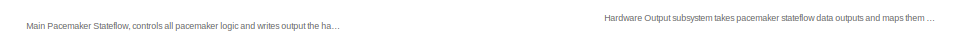
[diagram: root canvas - part 1/6, top right region]
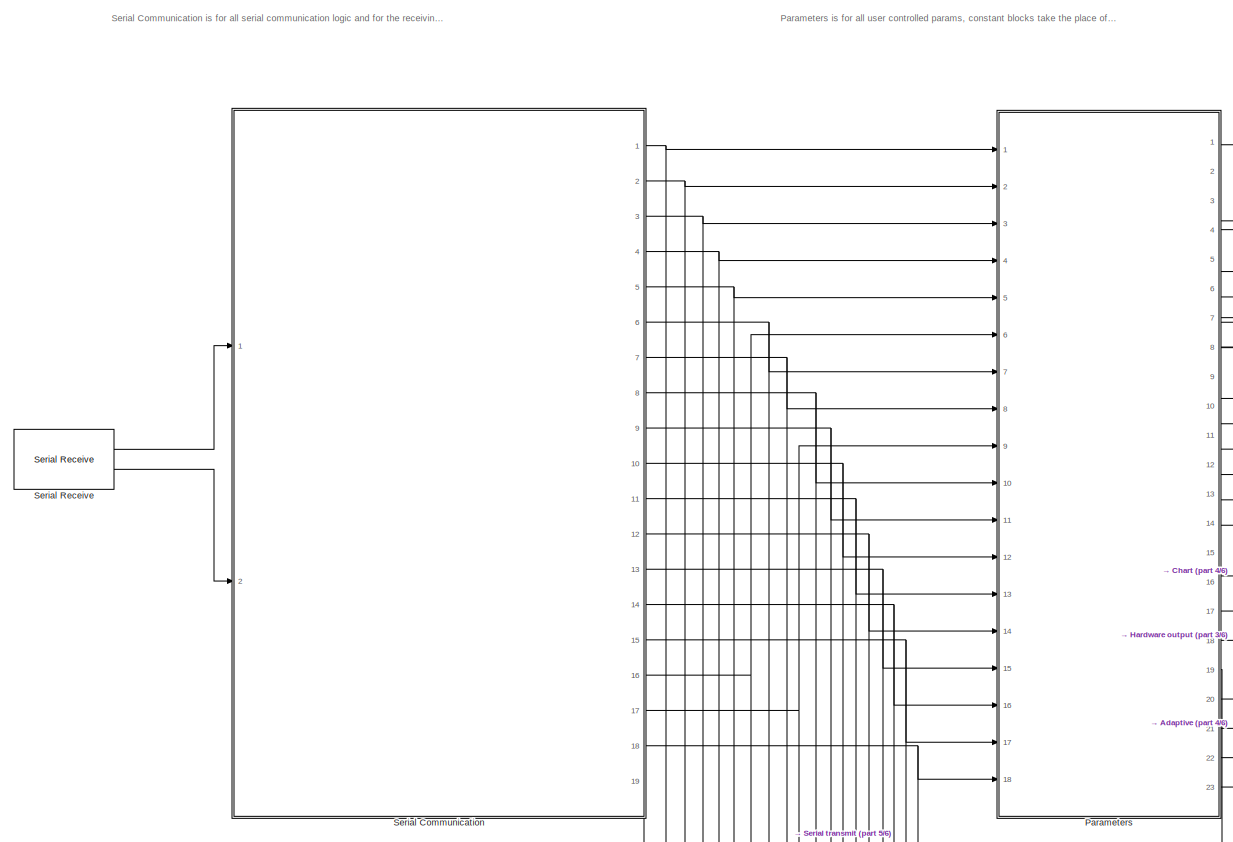
[diagram: root canvas - part 2/6, top left region]
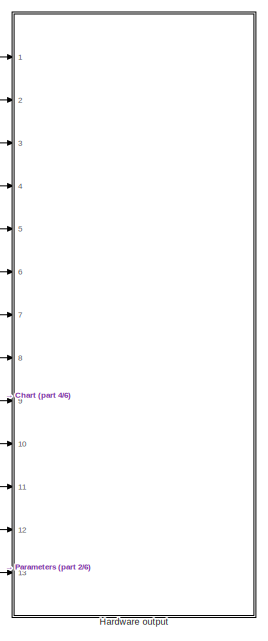
[diagram: root canvas - part 3/6, top right region]
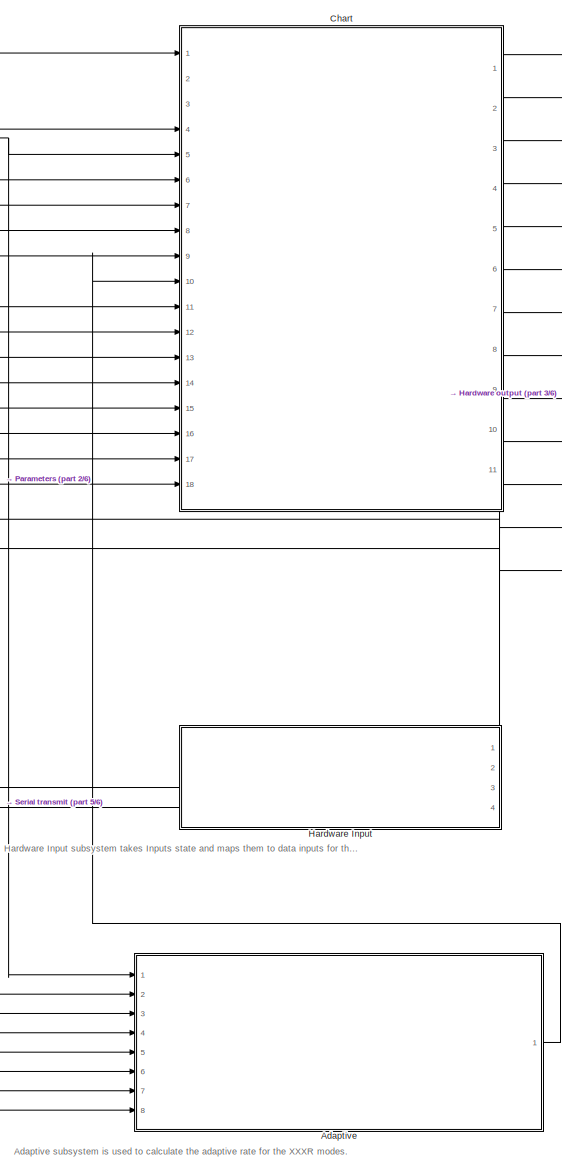
[diagram: root canvas - part 4/6, right side, full height]
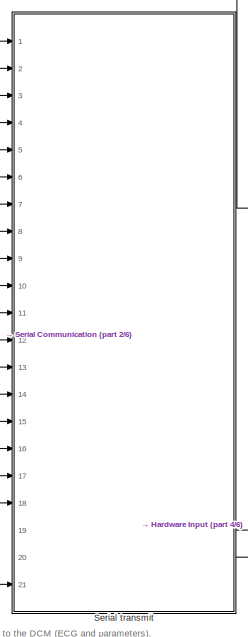
[diagram: root canvas - part 5/6, bottom center region]
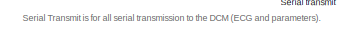
[diagram: root canvas - part 6/6, bottom center region]
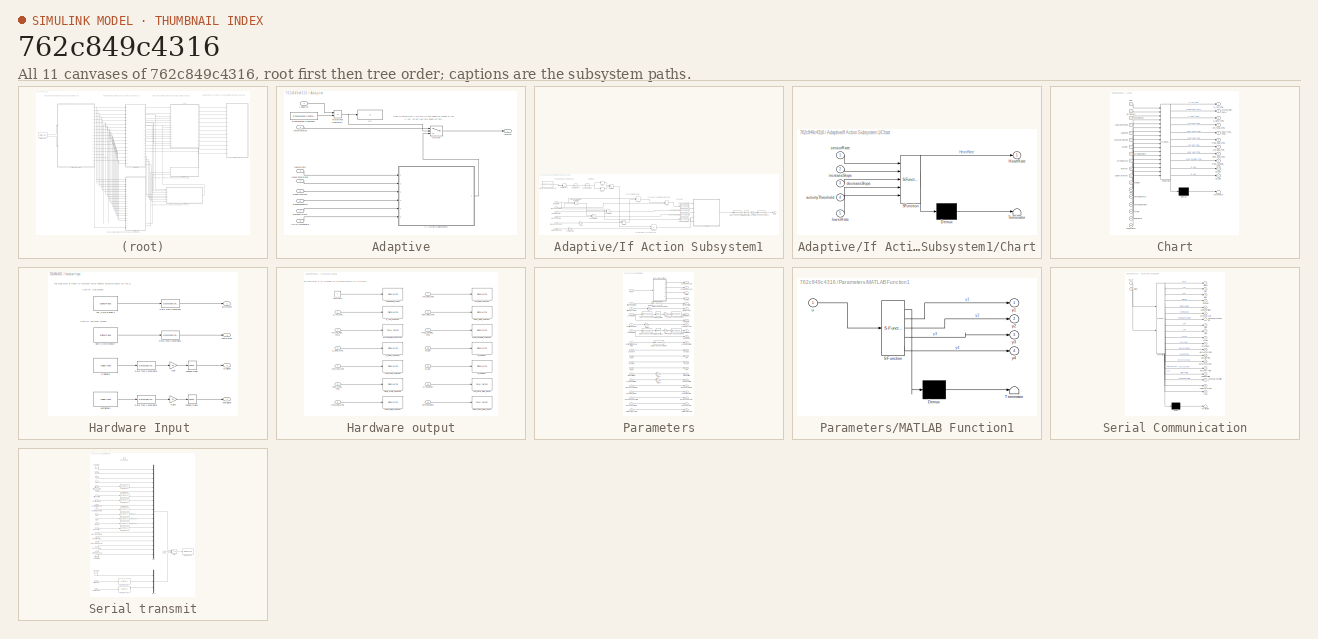
[diagram: thumbnail index - all 11 canvases of the model, root first then tree order]
MODEL slx_762c849c4316
KIND model
CONFIG AbsTol = auto
CONFIG EnableMultiTasking = on
CONFIG FixedStep = 1e-3
CONFIG MaxStep = auto
CONFIG MinStep = auto
CONFIG RelTol = 1e-3
CONFIG SampleTimeConstraint = Unconstrained
CONFIG Solver = FixedStepAuto
CONFIG SolverName = FixedStepAuto
CONFIG StartTime = 0.0
CONFIG StopTime = 10.0
BLOCK [SubSystem] Adaptive
  Ports = [8, 1]
  RequestExecContextInheritance = off
BLOCK [Inport] Adaptive/ActivityThreshold
  Port = 8
BLOCK [Inport] Adaptive/Adaptive
BLOCK [Reference] Adaptive/Enumerated Constant1  REF=simulink/Sources/Enumerated
Constant
  Ports = [0, 1]
  SourceBlock = simulink/Sources/Enumerated\nConstant
  SourceProductBaseCode = SL
  SourceType = Enumerated Constant
BLOCK [SubSystem] Adaptive/If Action Subsystem1
  Ports = [6, 1]
  RequestExecContextInheritance = off
  TreatAsAtomicUnit = on
BLOCK [Inport] Adaptive/If Action Subsystem1/ActivityThreshold
  Port = 6
BLOCK [DataTypeConversion] Adaptive/If Action Subsystem1/Cast To Double
  OutDataTypeStr = double
  RndMeth = Floor
  SaturateOnIntegerOverflow = off
BLOCK [DataTypeConversion] Adaptive/If Action Subsystem1/Cast To Double1
  OutDataTypeStr = double
  RndMeth = Floor
  SaturateOnIntegerOverflow = off
BLOCK [DataTypeConversion] Adaptive/If Action Subsystem1/Cast To Double2
  OutDataTypeStr = double
  RndMeth = Floor
  SaturateOnIntegerOverflow = off
BLOCK [DataTypeConversion] Adaptive/If Action Subsystem1/Cast To Double3
  OutDataTypeStr = double
  RndMeth = Floor
  SaturateOnIntegerOverflow = off
BLOCK [SubSystem] Adaptive/If Action Subsystem1/Chart
  ErrorFcn = Stateflow.Translate.translate
  PermitHierarchicalResolution = ExplicitOnly
  PortSchema = {"entries":[{"content":{"sides":[{"content":{"connectorIds":["In1","In2","In3","In5","In4"]},"type":"ConnectorPlacement.EquallySpacedRectSide","uuid":"280d3624-73d1-46b8-bef9-6b152ff520d0"},{"content":{"connectorIds":["Out1"],"side":"RIGHT"},"type":"ConnectorPlacement.EquallySpacedRectSide","uuid":"ca231bc9-092d-4f04-92da-0e5e1126d83a"},{"content":{"connectorIds":[],"side":"TOP"},"type":"Connector...<+266ch>
  Ports = [5, 1]
  RequestExecContextInheritance = off
  SFBlockType = Chart
  TreatAsAtomicUnit = on
BLOCK [Demux] Adaptive/If Action Subsystem1/Chart/ Demux 
  Outputs = 1
  Ports = [1, 1]
BLOCK [S-Function] Adaptive/If Action Subsystem1/Chart/ SFunction 
  EnableBusSupport = on
  FunctionName = sf_sfun
  PortCounts = [5 2]
  Ports = [5, 2]
  SFcnIsStateOwnerBlock = off
  SFunctionDeploymentMode = off
  Tag = Stateflow S-Function 4
BLOCK [Terminator] Adaptive/If Action Subsystem1/Chart/ Terminator 
BLOCK [Outport] Adaptive/If Action Subsystem1/Chart/HeartRate
BLOCK [Inport] Adaptive/If Action Subsystem1/Chart/activityThreshold
  Port = 4
BLOCK [Inport] Adaptive/If Action Subsystem1/Chart/decreaseSlope
  Port = 3
BLOCK [Inport] Adaptive/If Action Subsystem1/Chart/increaseSlope
  Port = 2
BLOCK [Inport] Adaptive/If Action Subsystem1/Chart/lowerRate
  Port = 5
BLOCK [Inport] Adaptive/If Action Subsystem1/Chart/sensorRate
BLOCK [DataTypeConversion] Adaptive/If Action Subsystem1/Data Type Conversion2
  OutDataTypeStr = double
  RndMeth = Floor
  SaturateOnIntegerOverflow = off
BLOCK [DataTypeConversion] Adaptive/If Action Subsystem1/Data Type Conversion3
  OutDataTypeStr = uint16
  RndMeth = Floor
  SaturateOnIntegerOverflow = off
BLOCK [Product] Adaptive/If Action Subsystem1/Divide
  Inputs = **
  Ports = [2, 1]
BLOCK [DotProduct] Adaptive/If Action Subsystem1/Dot Product
  OutDataTypeStr = Inherit: Inherit via internal rule
  RndMeth = Nearest
BLOCK [Reference] Adaptive/If Action Subsystem1/FXOS8700 6-Axes Sensor  REF=frdmk64flib/FXOS8700 6-Axes Sensor
  Ports = [0, 1]
  SourceBlock = frdmk64flib/FXOS8700 6-Axes Sensor
  SourceProductBaseCode = EC_FRDM_K64F
  SourceType = freedomk64f.fxos8700
BLOCK [Gain] Adaptive/If Action Subsystem1/Gain
  Gain = 3
BLOCK [Gain] Adaptive/If Action Subsystem1/Gain1
  Gain = 60000
  OutDataTypeStr = double
BLOCK [Math] Adaptive/If Action Subsystem1/Math Function1
  Operator = reciprocal
  Ports = [1, 1]
BLOCK [MinMax] Adaptive/If Action Subsystem1/Max
  Function = max
  Ports = [1, 1]
BLOCK [MinMax] Adaptive/If Action Subsystem1/Max1
  Ports = [1, 1]
BLOCK [Inport] Adaptive/If Action Subsystem1/MaxSensorRate
  Port = 2
BLOCK [Sum] Adaptive/If Action Subsystem1/MaxSensorRate - lowerRate
  IconShape = rectangular
  Inputs = -+
  Ports = [2, 1]
BLOCK [MinMax] Adaptive/If Action Subsystem1/Min
  Inputs = 2
  Ports = [2, 1]
BLOCK [Outport] Adaptive/If Action Subsystem1/Out1
  InitialOutput = [0]
  OutputWhenDisabled = reset
BLOCK [Inport] Adaptive/If Action Subsystem1/ReactionTime
  Port = 3
BLOCK [Inport] Adaptive/If Action Subsystem1/RecoveryTime
  Port = 5
BLOCK [Inport] Adaptive/If Action Subsystem1/ResponseFactor
  Port = 4
BLOCK [Sqrt] Adaptive/If Action Subsystem1/Square Root
BLOCK [Sum] Adaptive/If Action Subsystem1/Subtract
  IconShape = rectangular
  Inputs = +-
  Ports = [2, 1]
BLOCK [Sum] Adaptive/If Action Subsystem1/Sum
  IconShape = rectangular
  Inputs = |++
  Ports = [2, 1]
BLOCK [Sum] Adaptive/If Action Subsystem1/Sum1
  IconShape = rectangular
  Inputs = |+-
  Ports = [2, 1]
BLOCK [Reference] Adaptive/If Action Subsystem1/Tapped Delay  REF=simulink/Discrete/Tapped Delay
  Ports = [1, 1]
  SourceBlock = simulink/Discrete/Tapped Delay
  SourceProductBaseCode = SL
  SourceType = Tapped Delay Line
BLOCK [Product] Adaptive/If Action Subsystem1/accelSlope
  Inputs = */
  Ports = [2, 1]
BLOCK [Product] Adaptive/If Action Subsystem1/decelSlope
  Inputs = */
  Ports = [2, 1]
BLOCK [Inport] Adaptive/If Action Subsystem1/lowerRate
BLOCK [Gain] Adaptive/If Action Subsystem1/scaleDown
  Gain = 0.5
BLOCK [If] Adaptive/If1
  IfExpression = u1 ~= 1
  Ports = [1, 1]
  ShowElse = off
BLOCK [Outport] Adaptive/Interval
BLOCK [Inport] Adaptive/LowerRate
  Port = 2
BLOCK [Inport] Adaptive/MaxSensorRate
  Port = 4
BLOCK [Inport] Adaptive/ReactionTime
  Port = 5
BLOCK [Inport] Adaptive/RecoveryTime
  Port = 7
BLOCK [RelationalOperator] Adaptive/Relational Operator1
  InputSameDT = off
  Operator = ==
  OutDataTypeStr = boolean
  Ports = [2, 1]
  RndMeth = Simplest
BLOCK [Inport] Adaptive/ResponseFactor
  Port = 6
BLOCK [Switch] Adaptive/Switch
  Criteria = u2 > Threshold
  InputSameDT = off
  SaturateOnIntegerOverflow = off
BLOCK [Inport] Adaptive/lowerInterval
  Port = 3
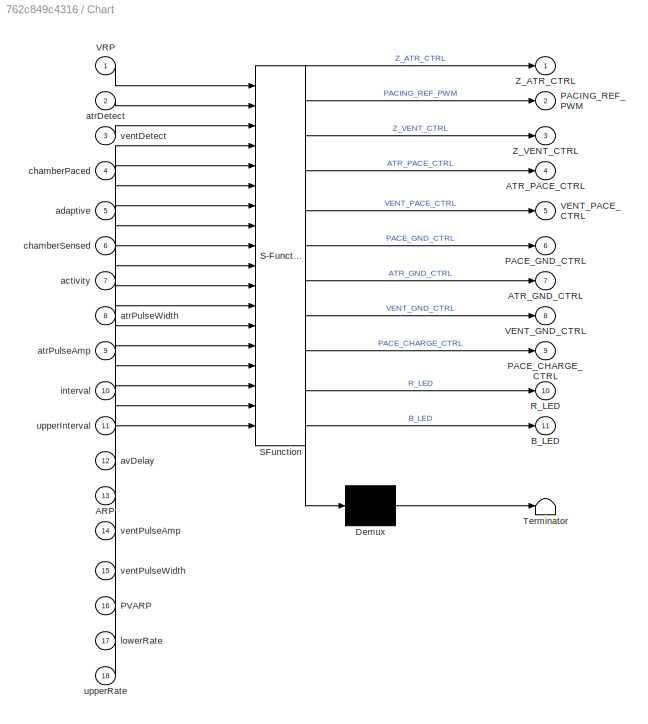
BLOCK [SubSystem] Chart
  ErrorFcn = Stateflow.Translate.translate
  PermitHierarchicalResolution = ExplicitOnly
  PortSchema = {"entries":[{"content":{"sides":[{"content":{"connectorIds":["In4","In6","In7","In5","In8","In9","In17","In10","In11","In18","In12","In13","In16","In1","In14","In15"]},"type":"ConnectorPlacement.EquallySpacedRectSide","uuid":"0f4bb13e-4f4f-48e2-b63c-32132ec29449"},{"content":{"connectorIds":["Out1","Out2","Out3","Out4","Out5","Out6","Out7","Out8","Out9","Out10","Out11"],"side":"RIGHT"},"type":"Con...<+568ch>
  Ports = [18, 11]
  RequestExecContextInheritance = off
  SFBlockType = Chart
  TreatAsAtomicUnit = on
BLOCK [Demux] Chart/ Demux 
  Outputs = 1
  Ports = [1, 1]
BLOCK [S-Function] Chart/ SFunction 
  EnableBusSupport = on
  FunctionName = sf_sfun
  PortCounts = [18 12]
  Ports = [18, 12]
  SFcnIsStateOwnerBlock = off
  SFunctionDeploymentMode = off
  Tag = Stateflow S-Function 2
BLOCK [Terminator] Chart/ Terminator 
BLOCK [Inport] Chart/ARP
  Port = 13
BLOCK [Outport] Chart/ATR_GND_CTRL
  Port = 7
BLOCK [Outport] Chart/ATR_PACE_CTRL
  Port = 4
BLOCK [Outport] Chart/B_LED
  Port = 11
BLOCK [Outport] Chart/PACE_CHARGE_CTRL
  Port = 9
BLOCK [Outport] Chart/PACE_GND_CTRL
  Port = 6
BLOCK [Outport] Chart/PACING_REF_PWM
  Port = 2
BLOCK [Inport] Chart/PVARP
  Port = 16
BLOCK [Outport] Chart/R_LED
  Port = 10
BLOCK [Outport] Chart/VENT_GND_CTRL
  Port = 8
BLOCK [Outport] Chart/VENT_PACE_CTRL
  Port = 5
BLOCK [Inport] Chart/VRP
BLOCK [Outport] Chart/Z_ATR_CTRL
BLOCK [Outport] Chart/Z_VENT_CTRL
  Port = 3
BLOCK [Inport] Chart/activity
  Port = 7
BLOCK [Inport] Chart/adaptive
  Port = 5
BLOCK [Inport] Chart/atrDetect
  Port = 2
BLOCK [Inport] Chart/atrPulseAmp
  Port = 9
BLOCK [Inport] Chart/atrPulseWidth
  Port = 8
BLOCK [Inport] Chart/avDelay
  Port = 12
BLOCK [Inport] Chart/chamberPaced
  Port = 4
BLOCK [Inport] Chart/chamberSensed
  Port = 6
BLOCK [Inport] Chart/interval
  Port = 10
BLOCK [Inport] Chart/lowerRate
  Port = 17
BLOCK [Inport] Chart/upperInterval
  Port = 11
BLOCK [Inport] Chart/upperRate
  Port = 18
BLOCK [Inport] Chart/ventDetect
  Port = 3
BLOCK [Inport] Chart/ventPulseAmp
  Port = 14
BLOCK [Inport] Chart/ventPulseWidth
  Port = 15
BLOCK [SubSystem] Hardware Input 
  PortSchema = {"entries":[{"content":{"sides":[{"content":{"connectorIds":["Out3","Out4"]},"type":"ConnectorPlacement.EquallySpacedRectSide","uuid":"9a02dc5a-1337-49ab-8682-c00d401b1034"},{"content":{"connectorIds":[],"side":"RIGHT"},"type":"ConnectorPlacement.EquallySpacedRectSide","uuid":"4abd6ab8-13f7-4ac3-81e8-def358981a0b"},{"content":{"connectorIds":["Out1","Out2"],"side":"TOP"},"type":"ConnectorPlacement...<+257ch>
  Ports = [0, 4]
  RequestExecContextInheritance = off
BLOCK [Reference] Hardware Input /ATR_CMP_DETECT  REF=frdmk64flib/Digital Read
  Ports = [0, 1]
  SourceBlock = frdmk64flib/Digital Read
  SourceProductBaseCode = EC_FRDM_K64F
  SourceType = freedomk64f.DigitalRead
BLOCK [Outport] Hardware Input /AtrSignal
  Port = 4
BLOCK [Reference] Hardware Input /AtrSignalIn  REF=frdmk64flib/Analog Input
  Ports = [0, 1]
  SourceBlock = frdmk64flib/Analog Input
  SourceProductBaseCode = EC_FRDM_K64F
  SourceType = freedomk64f.AnalogInput
BLOCK [DataTypeConversion] Hardware Input /Data Type Conversion
  OutDataTypeStr = boolean
  RndMeth = Round
  SaturateOnIntegerOverflow = off
BLOCK [DataTypeConversion] Hardware Input /Data Type Conversion1
  OutDataTypeStr = boolean
  RndMeth = Round
  SaturateOnIntegerOverflow = off
BLOCK [DataTypeConversion] Hardware Input /Data Type Conversion2
  OutDataTypeStr = single
  RndMeth = Nearest
  SaturateOnIntegerOverflow = off
BLOCK [DataTypeConversion] Hardware Input /Data Type Conversion3
  OutDataTypeStr = single
  RndMeth = Nearest
  SaturateOnIntegerOverflow = off
BLOCK [Gain] Hardware Input /Gain
  Gain = 3.3
BLOCK [Gain] Hardware Input /Gain1
  Gain = 3.3
BLOCK [Reference] Hardware Input /Tapped Delay  REF=simulink/Discrete/Tapped Delay
  Ports = [1, 1]
  SourceBlock = simulink/Discrete/Tapped Delay
  SourceProductBaseCode = SL
  SourceType = Tapped Delay Line
BLOCK [Reference] Hardware Input /Tapped Delay1  REF=simulink/Discrete/Tapped Delay
  Ports = [1, 1]
  SourceBlock = simulink/Discrete/Tapped Delay
  SourceProductBaseCode = SL
  SourceType = Tapped Delay Line
BLOCK [Reference] Hardware Input /VENT_CMP_DETECT  REF=frdmk64flib/Digital Read
  Ports = [0, 1]
  SourceBlock = frdmk64flib/Digital Read
  SourceProductBaseCode = EC_FRDM_K64F
  SourceType = freedomk64f.DigitalRead
BLOCK [Outport] Hardware Input /VentSignal
  Port = 3
BLOCK [Reference] Hardware Input /VentSignalIn  REF=frdmk64flib/Analog Input
  Ports = [0, 1]
  SourceBlock = frdmk64flib/Analog Input
  SourceProductBaseCode = EC_FRDM_K64F
  SourceType = freedomk64f.AnalogInput
BLOCK [Outport] Hardware Input /atrDetect
  OutDataTypeStr = boolean
BLOCK [Outport] Hardware Input /ventDetect
  OutDataTypeStr = boolean
  Port = 2
BLOCK [SubSystem] Hardware output
  Ports = [13]
  RequestExecContextInheritance = off
BLOCK [Reference] Hardware output/ATR_CMP_REF_PWM  REF=frdmk64flib/PWM Output
  Ports = [1]
  SourceBlock = frdmk64flib/PWM Output
  SourceProductBaseCode = EC_FRDM_K64F
  SourceType = freedomk64f.PWMOutput
BLOCK [Inport] Hardware output/ATR_GND_CTRL
  Port = 7
BLOCK [Reference] Hardware output/ATR_GND_CTRLOUT  REF=frdmk64flib/Digital Write
  Ports = [1]
  SourceBlock = frdmk64flib/Digital Write
  SourceProductBaseCode = EC_FRDM_K64F
  SourceType = freedomk64f.DigitalWrite
BLOCK [Inport] Hardware output/ATR_PACE_CTRL
  Port = 4
BLOCK [Reference] Hardware output/ATR_PACE_CTRLOUT  REF=frdmk64flib/Digital Write
  Ports = [1]
  SourceBlock = frdmk64flib/Digital Write
  SourceProductBaseCode = EC_FRDM_K64F
  SourceType = freedomk64f.DigitalWrite
BLOCK [Inport] Hardware output/AtrSensitivity
  Port = 12
BLOCK [Inport] Hardware output/B_LED
  Port = 11
BLOCK [Reference] Hardware output/B_LEDOUT  REF=frdmk64flib/Digital Write
  Ports = [1]
  SourceBlock = frdmk64flib/Digital Write
  SourceProductBaseCode = EC_FRDM_K64F
  SourceType = freedomk64f.DigitalWrite
BLOCK [Constant] Hardware output/Constant2
BLOCK [Reference] Hardware output/FRONTEND_CTRL1  REF=frdmk64flib/Digital Write
  Ports = [1]
  SourceBlock = frdmk64flib/Digital Write
  SourceProductBaseCode = EC_FRDM_K64F
  SourceType = freedomk64f.DigitalWrite
BLOCK [Inport] Hardware output/PACE_CHARGE_CTRL
  Port = 9
BLOCK [Reference] Hardware output/PACE_CHARGE_CTRLOUT  REF=frdmk64flib/Digital Write
  Ports = [1]
  SourceBlock = frdmk64flib/Digital Write
  SourceProductBaseCode = EC_FRDM_K64F
  SourceType = freedomk64f.DigitalWrite
BLOCK [Inport] Hardware output/PACE_GND_CTRL
  Port = 6
BLOCK [Reference] Hardware output/PACE_GND_CTRLOUT  REF=frdmk64flib/Digital Write
  Ports = [1]
  SourceBlock = frdmk64flib/Digital Write
  SourceProductBaseCode = EC_FRDM_K64F
  SourceType = freedomk64f.DigitalWrite
BLOCK [Inport] Hardware output/PACING_REF_PWM
  Port = 2
BLOCK [Reference] Hardware output/PACING_REF_PWMOUT  REF=frdmk64flib/PWM Output
  Ports = [1]
  SourceBlock = frdmk64flib/PWM Output
  SourceProductBaseCode = EC_FRDM_K64F
  SourceType = freedomk64f.PWMOutput
BLOCK [Inport] Hardware output/R_LED
  Port = 10
BLOCK [Reference] Hardware output/R_LEDOUT  REF=frdmk64flib/Digital Write
  Ports = [1]
  SourceBlock = frdmk64flib/Digital Write
  SourceProductBaseCode = EC_FRDM_K64F
  SourceType = freedomk64f.DigitalWrite
BLOCK [Reference] Hardware output/VENT_CMP_REF_PWM  REF=frdmk64flib/PWM Output
  Ports = [1]
  SourceBlock = frdmk64flib/PWM Output
  SourceProductBaseCode = EC_FRDM_K64F
  SourceType = freedomk64f.PWMOutput
BLOCK [Inport] Hardware output/VENT_GND_CTRL
  Port = 8
BLOCK [Reference] Hardware output/VENT_GND_CTRLOUT  REF=frdmk64flib/Digital Write
  Ports = [1]
  SourceBlock = frdmk64flib/Digital Write
  SourceProductBaseCode = EC_FRDM_K64F
  SourceType = freedomk64f.DigitalWrite
BLOCK [Inport] Hardware output/VENT_PACE_CTRL
  Port = 5
BLOCK [Reference] Hardware output/VENT_PACE_CTRLOUT  REF=frdmk64flib/Digital Write
  Ports = [1]
  SourceBlock = frdmk64flib/Digital Write
  SourceProductBaseCode = EC_FRDM_K64F
  SourceType = freedomk64f.DigitalWrite
BLOCK [Inport] Hardware output/VentSensitivity
  Port = 13
BLOCK [Inport] Hardware output/Z_ATR_CTRL
BLOCK [Reference] Hardware output/Z_ATR_CTRLOUT  REF=frdmk64flib/Digital Write
  Ports = [1]
  SourceBlock = frdmk64flib/Digital Write
  SourceProductBaseCode = EC_FRDM_K64F
  SourceType = freedomk64f.DigitalWrite
BLOCK [Inport] Hardware output/Z_VENT_CTRL
  Port = 3
BLOCK [Reference] Hardware output/Z_VENT_CTRLOUT  REF=frdmk64flib/Digital Write
  Ports = [1]
  SourceBlock = frdmk64flib/Digital Write
  SourceProductBaseCode = EC_FRDM_K64F
  SourceType = freedomk64f.DigitalWrite
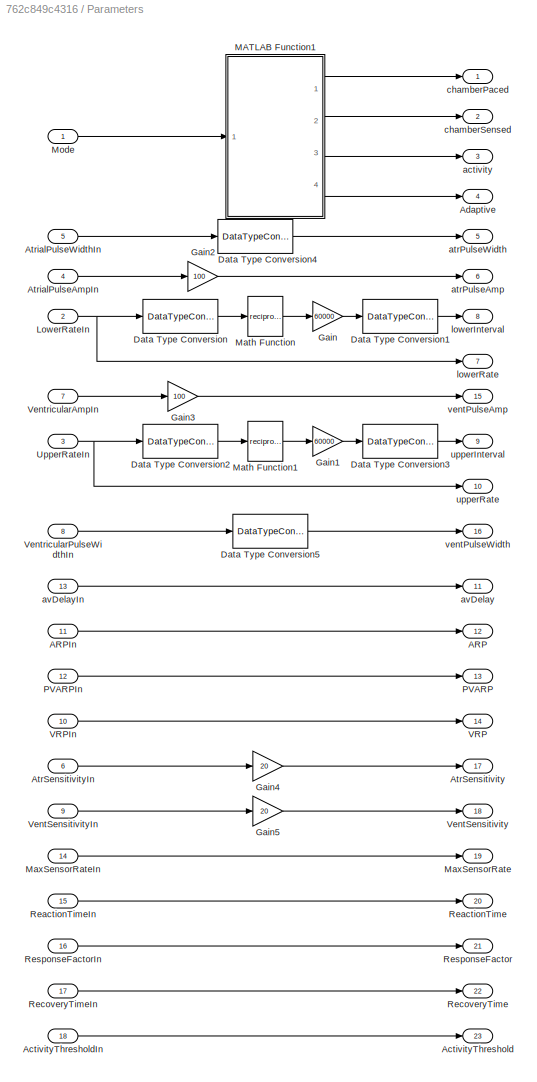
BLOCK [SubSystem] Parameters
  Ports = [18, 23]
  RequestExecContextInheritance = off
BLOCK [Outport] Parameters/ARP
  Port = 12
BLOCK [Inport] Parameters/ARPIn
  Port = 11
BLOCK [Outport] Parameters/ActivityThreshold
  Port = 23
BLOCK [Inport] Parameters/ActivityThresholdIn
  Port = 18
BLOCK [Outport] Parameters/Adaptive
  OutDataTypeStr = Enum: Adaptive
  Port = 4
BLOCK [Outport] Parameters/AtrSensitivity
  Port = 17
BLOCK [Inport] Parameters/AtrSensitivityIn
  Port = 6
BLOCK [Inport] Parameters/AtrialPulseAmpIn
  Port = 4
BLOCK [Inport] Parameters/AtrialPulseWidthIn
  Port = 5
BLOCK [DataTypeConversion] Parameters/Data Type Conversion
  OutDataTypeStr = double
  RndMeth = Floor
  SaturateOnIntegerOverflow = off
BLOCK [DataTypeConversion] Parameters/Data Type Conversion1
  OutDataTypeStr = uint16
  RndMeth = Floor
  SaturateOnIntegerOverflow = off
BLOCK [DataTypeConversion] Parameters/Data Type Conversion2
  OutDataTypeStr = double
  RndMeth = Floor
  SaturateOnIntegerOverflow = off
BLOCK [DataTypeConversion] Parameters/Data Type Conversion3
  OutDataTypeStr = uint16
  RndMeth = Floor
  SaturateOnIntegerOverflow = off
BLOCK [DataTypeConversion] Parameters/Data Type Conversion4
  OutDataTypeStr = uint16
  RndMeth = Floor
  SaturateOnIntegerOverflow = off
BLOCK [DataTypeConversion] Parameters/Data Type Conversion5
  OutDataTypeStr = uint16
  RndMeth = Floor
  SaturateOnIntegerOverflow = off
BLOCK [Gain] Parameters/Gain
  Gain = 60000
  OutDataTypeStr = double
BLOCK [Gain] Parameters/Gain1
  Gain = 60000
  OutDataTypeStr = double
BLOCK [Gain] Parameters/Gain2
  Gain = 100
BLOCK [Gain] Parameters/Gain3
  Gain = 100
BLOCK [Gain] Parameters/Gain4
  Gain = 20
BLOCK [Gain] Parameters/Gain5
  Gain = 20
BLOCK [Inport] Parameters/LowerRateIn
  Port = 2
  Unit = ppm
BLOCK [SubSystem] Parameters/MATLAB Function1
  ErrorFcn = Stateflow.Translate.translate
  PermitHierarchicalResolution = ExplicitOnly
  Ports = [1, 4]
  RequestExecContextInheritance = off
  SFBlockType = MATLAB Function
  TreatAsAtomicUnit = on
BLOCK [Demux] Parameters/MATLAB Function1/ Demux 
  Outputs = 1
  Ports = [1, 1]
BLOCK [S-Function] Parameters/MATLAB Function1/ SFunction 
  EnableBusSupport = on
  FunctionName = sf_sfun
  PortCounts = [1 5]
  Ports = [1, 5]
  SFcnIsStateOwnerBlock = off
  SFunctionDeploymentMode = off
  Tag = Stateflow S-Function 1
BLOCK [Terminator] Parameters/MATLAB Function1/ Terminator 
BLOCK [Inport] Parameters/MATLAB Function1/u
BLOCK [Outport] Parameters/MATLAB Function1/y1
BLOCK [Outport] Parameters/MATLAB Function1/y2
  Port = 2
BLOCK [Outport] Parameters/MATLAB Function1/y3
  Port = 3
BLOCK [Outport] Parameters/MATLAB Function1/y4
  Port = 4
BLOCK [Math] Parameters/Math Function
  Operator = reciprocal
  Ports = [1, 1]
BLOCK [Math] Parameters/Math Function1
  Operator = reciprocal
  Ports = [1, 1]
BLOCK [Outport] Parameters/MaxSensorRate
  Port = 19
BLOCK [Inport] Parameters/MaxSensorRateIn
  Port = 14
BLOCK [Inport] Parameters/Mode
BLOCK [Outport] Parameters/PVARP
  Port = 13
BLOCK [Inport] Parameters/PVARPIn
  Port = 12
BLOCK [Outport] Parameters/ReactionTime
  Port = 20
BLOCK [Inport] Parameters/ReactionTimeIn
  Port = 15
BLOCK [Outport] Parameters/RecoveryTime
  Port = 22
BLOCK [Inport] Parameters/RecoveryTimeIn
  Port = 17
BLOCK [Outport] Parameters/ResponseFactor
  Port = 21
BLOCK [Inport] Parameters/ResponseFactorIn
  Port = 16
BLOCK [Inport] Parameters/UpperRateIn
  Port = 3
  Unit = ppm
BLOCK [Outport] Parameters/VRP
  Port = 14
BLOCK [Inport] Parameters/VRPIn
  Port = 10
BLOCK [Outport] Parameters/VentSensitivity
  Port = 18
BLOCK [Inport] Parameters/VentSensitivityIn
  Port = 9
BLOCK [Inport] Parameters/VentricularAmpIn
  Port = 7
BLOCK [Inport] Parameters/VentricularPulseWidthIn
  Port = 8
BLOCK [Outport] Parameters/activity
  OutDataTypeStr = Enum: Activity
  Port = 3
BLOCK [Outport] Parameters/atrPulseAmp
  Port = 6
  Unit = mV
BLOCK [Outport] Parameters/atrPulseWidth
  Port = 5
  Unit = ms
BLOCK [Outport] Parameters/avDelay
  Port = 11
BLOCK [Inport] Parameters/avDelayIn
  Port = 13
  Unit = ms
BLOCK [Outport] Parameters/chamberPaced
  OutDataTypeStr = Enum: ChamberPaced
BLOCK [Outport] Parameters/chamberSensed
  OutDataTypeStr = Enum: ChamberSensed
  Port = 2
BLOCK [Outport] Parameters/lowerInterval
  Port = 8
  Unit = ms
BLOCK [Outport] Parameters/lowerRate
  Port = 7
  Unit = ppm
BLOCK [Outport] Parameters/upperInterval
  Port = 9
  Unit = ms
BLOCK [Outport] Parameters/upperRate
  Port = 10
  Unit = ppm
BLOCK [Outport] Parameters/ventPulseAmp
  Port = 15
BLOCK [Outport] Parameters/ventPulseWidth
  Port = 16
BLOCK [SubSystem] Serial Communication
  ErrorFcn = Stateflow.Translate.translate
  PermitHierarchicalResolution = ExplicitOnly
  PortSchema = {"entries":[{"content":{"sides":[{"content":{"connectorIds":["In1","In2"]},"type":"ConnectorPlacement.EquallySpacedRectSide","uuid":"7ad26d3d-dec4-4b7e-9b47-df96273e8372"},{"content":{"connectorIds":["Out1","Out2","Out3","Out4","Out5","Out16","Out6","Out7","Out17","Out8","Out9","Out10","Out11","Out12","Out13","Out14","Out15","Out18"],"side":"RIGHT"},"type":"ConnectorPlacement.EquallySpacedRectSide...<+527ch>
  Ports = [2, 19]
  RequestExecContextInheritance = off
  SFBlockType = Chart
  TreatAsAtomicUnit = on
BLOCK [Demux] Serial Communication/ Demux 
  Outputs = 1
  Ports = [1, 1]
BLOCK [S-Function] Serial Communication/ SFunction 
  EnableBusSupport = on
  FunctionName = sf_sfun
  PortCounts = [2 20]
  Ports = [2, 20]
  SFcnIsStateOwnerBlock = off
  SFunctionDeploymentMode = off
  Tag = Stateflow S-Function 3
BLOCK [Terminator] Serial Communication/ Terminator 
BLOCK [Outport] Serial Communication/ARP
  Port = 9
BLOCK [Outport] Serial Communication/ActivityThreshold
  Port = 18
BLOCK [Outport] Serial Communication/AtrialAmp
  Port = 4
BLOCK [Outport] Serial Communication/AtrialPulseWidth
  Port = 5
BLOCK [Outport] Serial Communication/AtrialSensitivity
  Port = 16
BLOCK [Outport] Serial Communication/FixAVDelay
  Port = 11
BLOCK [Outport] Serial Communication/LRL
  Port = 2
BLOCK [Outport] Serial Communication/MaxSensorRate
  Port = 12
BLOCK [Outport] Serial Communication/Mode
BLOCK [Outport] Serial Communication/PVARP
  Port = 10
BLOCK [Inport] Serial Communication/RX_R
BLOCK [Outport] Serial Communication/ReactionTime
  Port = 13
BLOCK [Outport] Serial Communication/RecoveryTime
  Port = 15
BLOCK [Outport] Serial Communication/ResponseFactor
  Port = 14
BLOCK [Inport] Serial Communication/Status
  Port = 2
BLOCK [Outport] Serial Communication/Type
  Port = 19
BLOCK [Outport] Serial Communication/URL
  Port = 3
BLOCK [Outport] Serial Communication/VRP
  Port = 8
BLOCK [Outport] Serial Communication/VentricularAmp
  Port = 6
BLOCK [Outport] Serial Communication/VentricularPulseWidth
  Port = 7
BLOCK [Outport] Serial Communication/VentricularSensitivity
  Port = 17
BLOCK [Reference] Serial Receive  REF=frdmk64flib/Serial Receive
  Ports = [0, 2]
  SourceBlock = frdmk64flib/Serial Receive
  SourceProductBaseCode = EC_FRDM_K64F
  SourceType = freedomk64f.SCIRead
BLOCK [SubSystem] Serial transmit
  Ports = [21, 0, 0, 1]
  RequestExecContextInheritance = off
  TreatAsAtomicUnit = on
BLOCK [Inport] Serial transmit/ARP
  OutDataTypeStr = uint16
  Port = 11
BLOCK [Inport] Serial transmit/ActivityThreshold
  OutDataTypeStr = uint8
  Port = 18
BLOCK [Inport] Serial transmit/AtrSignalArr
  OutDataTypeStr = single
  Port = 19
BLOCK [Inport] Serial transmit/AtrialAmp
  OutDataTypeStr = single
  Port = 4
BLOCK [Inport] Serial transmit/AtrialPulseWidth
  OutDataTypeStr = uint8
  Port = 5
BLOCK [Inport] Serial transmit/AtrialSensitivity
  OutDataTypeStr = single
  Port = 6
BLOCK [Reference] Serial transmit/Byte Pack  REF=etargetslib/Byte Pack
  Ports = [1, 1]
  SourceBlock = etargetslib/Byte Pack
  SourceProductBaseCode = ME
  SourceType = Byte pack
BLOCK [Reference] Serial transmit/Byte Pack1  REF=etargetslib/Byte Pack
  Ports = [1, 1]
  SourceBlock = etargetslib/Byte Pack
  SourceProductBaseCode = ME
  SourceType = Byte pack
BLOCK [Reference] Serial transmit/Byte Pack10  REF=etargetslib/Byte Pack
  Ports = [1, 1]
  SourceBlock = etargetslib/Byte Pack
  SourceProductBaseCode = ME
  SourceType = Byte pack
BLOCK [Reference] Serial transmit/Byte Pack11  REF=etargetslib/Byte Pack
  Ports = [1, 1]
  SourceBlock = etargetslib/Byte Pack
  SourceProductBaseCode = ME
  SourceType = Byte pack
BLOCK [Reference] Serial transmit/Byte Pack3  REF=etargetslib/Byte Pack
  Ports = [1, 1]
  SourceBlock = etargetslib/Byte Pack
  SourceProductBaseCode = ME
  SourceType = Byte pack
BLOCK [Reference] Serial transmit/Byte Pack4  REF=etargetslib/Byte Pack
  Ports = [1, 1]
  SourceBlock = etargetslib/Byte Pack
  SourceProductBaseCode = ME
  SourceType = Byte pack
BLOCK [Reference] Serial transmit/Byte Pack5  REF=etargetslib/Byte Pack
  Ports = [1, 1]
  SourceBlock = etargetslib/Byte Pack
  SourceProductBaseCode = ME
  SourceType = Byte pack
BLOCK [Reference] Serial transmit/Byte Pack6  REF=etargetslib/Byte Pack
  Ports = [1, 1]
  SourceBlock = etargetslib/Byte Pack
  SourceProductBaseCode = ME
  SourceType = Byte pack
BLOCK [Reference] Serial transmit/Byte Pack7  REF=etargetslib/Byte Pack
  Ports = [1, 1]
  SourceBlock = etargetslib/Byte Pack
  SourceProductBaseCode = ME
  SourceType = Byte pack
BLOCK [Reference] Serial transmit/Byte Pack9  REF=etargetslib/Byte Pack
  Ports = [1, 1]
  SourceBlock = etargetslib/Byte Pack
  SourceProductBaseCode = ME
  SourceType = Byte pack
BLOCK [Constant] Serial transmit/Constant
  OutDataTypeStr = uint8
BLOCK [Constant] Serial transmit/Constant1
  OutDataTypeStr = uint8
  Value = 0
BLOCK [Constant] Serial transmit/Constant2
  OutDataTypeStr = uint8
  Value = zeros(1,46)
BLOCK [Inport] Serial transmit/FixAVDelay
  OutDataTypeStr = uint16
  Port = 13
BLOCK [Inport] Serial transmit/LRL
  OutDataTypeStr = uint8
  Port = 2
BLOCK [Inport] Serial transmit/MaxSensorRate
  OutDataTypeStr = uint8
  Port = 14
BLOCK [Inport] Serial transmit/Mode
  OutDataTypeStr = uint8
BLOCK [Mux] Serial transmit/Mux
  DisplayOption = bar
  Inputs = 20
  Ports = [20, 1]
BLOCK [Mux] Serial transmit/Mux1
  DisplayOption = bar
  Inputs = 3
  Ports = [3, 1]
BLOCK [Inport] Serial transmit/PVARP
  OutDataTypeStr = uint16
  Port = 12
BLOCK [Inport] Serial transmit/ReactionTime
  OutDataTypeStr = uint8
  Port = 15
BLOCK [Inport] Serial transmit/RecoveryTime
  OutDataTypeStr = uint8
  Port = 17
BLOCK [Inport] Serial transmit/ResponseFactor
  OutDataTypeStr = uint8
  Port = 16
BLOCK [TriggerPort] Serial transmit/Send_DCM
  FunctionName = Send_DCM
  IsSimulinkFunction = on
  Ports = []
  StatesWhenEnabling = held
  TriggerType = function-call
  VariantControl = Variant
BLOCK [Reference] Serial transmit/Serial Transmit  REF=frdmk64flib/Serial Transmit
  Ports = [1]
  SourceBlock = frdmk64flib/Serial Transmit
  SourceProductBaseCode = EC_FRDM_K64F
  SourceType = freedomk64f.SCIWrite
BLOCK [Switch] Serial transmit/Switch
  Criteria = u2 > Threshold
  InputSameDT = off
  SaturateOnIntegerOverflow = off
BLOCK [Inport] Serial transmit/Type
  OutDataTypeStr = uint8
  Port = 21
BLOCK [Inport] Serial transmit/URL
  OutDataTypeStr = uint8
  Port = 3
BLOCK [Inport] Serial transmit/VRP
  OutDataTypeStr = uint16
  Port = 10
BLOCK [Inport] Serial transmit/VentSignalArr
  OutDataTypeStr = single
  Port = 20
BLOCK [Inport] Serial transmit/VentricularAmp
  OutDataTypeStr = single
  Port = 7
BLOCK [Inport] Serial transmit/VentricularPulseWidth
  OutDataTypeStr = uint8
  Port = 8
BLOCK [Inport] Serial transmit/VentricularSensitivity
  OutDataTypeStr = single
  Port = 9
ANNOTATION (root): Adaptive subsystem is used to calculate the adaptive rate for the XXXR modes.
ANNOTATION (root): Hardware Input subsystem takes Inputs state and maps them to data inputs for the pacemaker stateflow
ANNOTATION (root): Hardware Output subsystem takes pacemaker stateflow data outputs and maps them to appropriate output blocks
ANNOTATION (root): Main Pacemaker Stateflow , controls all pacemaker logic and writes output the hardware subsystem
ANNOTATION (root): Parameters is for all user controlled params, constant blocks take the place of serial data communications
ANNOTATION (root): Serial Communication is for all serial communication logic and for the receiving of parameters.
ANNOTATION (root): Serial Transmit is for all serial transmission to the DCM (ECG and parameters).
ANNOTATION Adaptive: Used to determine if we are in rate adaptive modes or not If not, do not use rate adaptive rate
ANNOTATION Adaptive/If Action Subsystem1: Buffer data
ANNOTATION Adaptive/If Action Subsystem1: Take magnitude of vector output
ANNOTATION Adaptive/If Action Subsystem1: add buffer
ANNOTATION Adaptive/If Action Subsystem1: check if activity exceeds threshold
ANNOTATION Adaptive/If Action Subsystem1: check if sensor determined rate < MSR
ANNOTATION Adaptive/If Action Subsystem1: sensor determined rate
ANNOTATION Hardware Input : This subsystem is meant to represent all the relevant hardware inputs for the pacemaker
ANNOTATION Hardware Input : Used for Atrial Sensing
ANNOTATION Hardware Input : Used for Ventricular Sensing
ANNOTATION Hardware output: This subsystem is for mapping the stateflow outputs to I/O states
LINE Adaptive/ActivityThreshold:1 -> Adaptive/If Action Subsystem1:6
LINE Adaptive/Adaptive:1 -> Adaptive/Relational Operator1:1
LINE Adaptive/Enumerated Constant1:1 -> Adaptive/Relational Operator1:2
LINE Adaptive/If Action Subsystem1/ActivityThreshold:1 -> Adaptive/If Action Subsystem1/scaleDown:1
LINE Adaptive/If Action Subsystem1/Cast To Double1:1 -> Adaptive/If Action Subsystem1/Chart:1
LINE Adaptive/If Action Subsystem1/Cast To Double2:1 -> Adaptive/If Action Subsystem1/Chart:3
LINE Adaptive/If Action Subsystem1/Cast To Double3:1 -> Adaptive/If Action Subsystem1/Chart:5
LINE Adaptive/If Action Subsystem1/Cast To Double:1 -> Adaptive/If Action Subsystem1/Chart:2
LINE Adaptive/If Action Subsystem1/Chart:1 -> Adaptive/If Action Subsystem1/Data Type Conversion2:1
LINE Adaptive/If Action Subsystem1/Data Type Conversion2:1 -> Adaptive/If Action Subsystem1/Math Function1:1
LINE Adaptive/If Action Subsystem1/Data Type Conversion3:1 -> Adaptive/If Action Subsystem1/Out1:1
LINE Adaptive/If Action Subsystem1/Divide:1 -> Adaptive/If Action Subsystem1/Sum:2
LINE Adaptive/If Action Subsystem1/Dot Product:1 -> Adaptive/If Action Subsystem1/Square Root:1
NET Adaptive/If Action Subsystem1/FXOS8700 6-Axes Sensor:1 -> Adaptive/If Action Subsystem1/Dot Product:1, Adaptive/If Action Subsystem1/Dot Product:2
LINE Adaptive/If Action Subsystem1/Gain1:1 -> Adaptive/If Action Subsystem1/Data Type Conversion3:1
LINE Adaptive/If Action Subsystem1/Gain:1 -> Adaptive/If Action Subsystem1/Divide:2
LINE Adaptive/If Action Subsystem1/Math Function1:1 -> Adaptive/If Action Subsystem1/Gain1:1
LINE Adaptive/If Action Subsystem1/Max1:1 -> Adaptive/If Action Subsystem1/Subtract:2
LINE Adaptive/If Action Subsystem1/Max:1 -> Adaptive/If Action Subsystem1/Subtract:1
NET Adaptive/If Action Subsystem1/MaxSensorRate - lowerRate:1 -> Adaptive/If Action Subsystem1/accelSlope:1, Adaptive/If Action Subsystem1/decelSlope:1
NET Adaptive/If Action Subsystem1/MaxSensorRate:1 -> Adaptive/If Action Subsystem1/MaxSensorRate - lowerRate:2, Adaptive/If Action Subsystem1/Min:2
LINE Adaptive/If Action Subsystem1/Min:1 -> Adaptive/If Action Subsystem1/Cast To Double1:1
LINE Adaptive/If Action Subsystem1/ReactionTime:1 -> Adaptive/If Action Subsystem1/accelSlope:2
LINE Adaptive/If Action Subsystem1/RecoveryTime:1 -> Adaptive/If Action Subsystem1/decelSlope:2
LINE Adaptive/If Action Subsystem1/ResponseFactor:1 -> Adaptive/If Action Subsystem1/Gain:1
LINE Adaptive/If Action Subsystem1/Square Root:1 -> Adaptive/If Action Subsystem1/Tapped Delay:1
NET Adaptive/If Action Subsystem1/Subtract:1 -> Adaptive/If Action Subsystem1/Divide:1, Adaptive/If Action Subsystem1/Sum1:1
LINE Adaptive/If Action Subsystem1/Sum1:1 -> Adaptive/If Action Subsystem1/Chart:4
LINE Adaptive/If Action Subsystem1/Sum:1 -> Adaptive/If Action Subsystem1/Min:1
NET Adaptive/If Action Subsystem1/Tapped Delay:1 -> Adaptive/If Action Subsystem1/Max1:1, Adaptive/If Action Subsystem1/Max:1
LINE Adaptive/If Action Subsystem1/accelSlope:1 -> Adaptive/If Action Subsystem1/Cast To Double:1
LINE Adaptive/If Action Subsystem1/decelSlope:1 -> Adaptive/If Action Subsystem1/Cast To Double2:1
NET Adaptive/If Action Subsystem1/lowerRate:1 -> Adaptive/If Action Subsystem1/Cast To Double3:1, Adaptive/If Action Subsystem1/MaxSensorRate - lowerRate:1, Adaptive/If Action Subsystem1/Sum:1
LINE Adaptive/If Action Subsystem1/scaleDown:1 -> Adaptive/If Action Subsystem1/Sum1:2
LINE Adaptive/If Action Subsystem1:1 -> Adaptive/Switch:3
LINE Adaptive/LowerRate:1 -> Adaptive/If Action Subsystem1:1
LINE Adaptive/MaxSensorRate:1 -> Adaptive/If Action Subsystem1:2
LINE Adaptive/ReactionTime:1 -> Adaptive/If Action Subsystem1:3
LINE Adaptive/RecoveryTime:1 -> Adaptive/If Action Subsystem1:5
NET Adaptive/Relational Operator1:1 -> Adaptive/If1:1, Adaptive/Switch:2
LINE Adaptive/ResponseFactor:1 -> Adaptive/If Action Subsystem1:4
LINE Adaptive/Switch:1 -> Adaptive/Interval:1
LINE Adaptive/lowerInterval:1 -> Adaptive/Switch:1
LINE Adaptive:1 -> Chart:10
LINE Chart:1 -> Hardware output:1
LINE Chart:10 -> Hardware output:10
LINE Chart:11 -> Hardware output:11
LINE Chart:2 -> Hardware output:2
LINE Chart:3 -> Hardware output:3
LINE Chart:4 -> Hardware output:4
LINE Chart:5 -> Hardware output:5
LINE Chart:6 -> Hardware output:6
LINE Chart:7 -> Hardware output:7
LINE Chart:8 -> Hardware output:8
LINE Chart:9 -> Hardware output:9
LINE Hardware Input /ATR_CMP_DETECT:1 -> Hardware Input /Data Type Conversion:1
LINE Hardware Input /AtrSignalIn:1 -> Hardware Input /Data Type Conversion3:1
LINE Hardware Input /Data Type Conversion1:1 -> Hardware Input /ventDetect:1
LINE Hardware Input /Data Type Conversion2:1 -> Hardware Input /Gain1:1
LINE Hardware Input /Data Type Conversion3:1 -> Hardware Input /Gain:1
LINE Hardware Input /Data Type Conversion:1 -> Hardware Input /atrDetect:1
LINE Hardware Input /Gain1:1 -> Hardware Input /Tapped Delay1:1
LINE Hardware Input /Gain:1 -> Hardware Input /Tapped Delay:1
LINE Hardware Input /Tapped Delay1:1 -> Hardware Input /VentSignal:1
LINE Hardware Input /Tapped Delay:1 -> Hardware Input /AtrSignal:1
LINE Hardware Input /VENT_CMP_DETECT:1 -> Hardware Input /Data Type Conversion1:1
LINE Hardware Input /VentSignalIn:1 -> Hardware Input /Data Type Conversion2:1
LINE Hardware Input :1 -> Chart:2
LINE Hardware Input :2 -> Chart:3
LINE Hardware Input :3 -> Serial transmit:20
LINE Hardware Input :4 -> Serial transmit:19
LINE Hardware output/ATR_GND_CTRL:1 -> Hardware output/ATR_GND_CTRLOUT:1
LINE Hardware output/ATR_PACE_CTRL:1 -> Hardware output/ATR_PACE_CTRLOUT:1
LINE Hardware output/AtrSensitivity:1 -> Hardware output/ATR_CMP_REF_PWM:1
LINE Hardware output/B_LED:1 -> Hardware output/B_LEDOUT:1
LINE Hardware output/Constant2:1 -> Hardware output/FRONTEND_CTRL1:1
LINE Hardware output/PACE_CHARGE_CTRL:1 -> Hardware output/PACE_CHARGE_CTRLOUT:1
LINE Hardware output/PACE_GND_CTRL:1 -> Hardware output/PACE_GND_CTRLOUT:1
LINE Hardware output/PACING_REF_PWM:1 -> Hardware output/PACING_REF_PWMOUT:1
LINE Hardware output/R_LED:1 -> Hardware output/R_LEDOUT:1
LINE Hardware output/VENT_GND_CTRL:1 -> Hardware output/VENT_GND_CTRLOUT:1
LINE Hardware output/VENT_PACE_CTRL:1 -> Hardware output/VENT_PACE_CTRLOUT:1
LINE Hardware output/VentSensitivity:1 -> Hardware output/VENT_CMP_REF_PWM:1
LINE Hardware output/Z_ATR_CTRL:1 -> Hardware output/Z_ATR_CTRLOUT:1
LINE Hardware output/Z_VENT_CTRL:1 -> Hardware output/Z_VENT_CTRLOUT:1
LINE Parameters/ARPIn:1 -> Parameters/ARP:1
LINE Parameters/ActivityThresholdIn:1 -> Parameters/ActivityThreshold:1
LINE Parameters/AtrSensitivityIn:1 -> Parameters/Gain4:1
LINE Parameters/AtrialPulseAmpIn:1 -> Parameters/Gain2:1
LINE Parameters/AtrialPulseWidthIn:1 -> Parameters/Data Type Conversion4:1
LINE Parameters/Data Type Conversion1:1 -> Parameters/lowerInterval:1
LINE Parameters/Data Type Conversion2:1 -> Parameters/Math Function1:1
LINE Parameters/Data Type Conversion3:1 -> Parameters/upperInterval:1
LINE Parameters/Data Type Conversion4:1 -> Parameters/atrPulseWidth:1
LINE Parameters/Data Type Conversion5:1 -> Parameters/ventPulseWidth:1
LINE Parameters/Data Type Conversion:1 -> Parameters/Math Function:1
LINE Parameters/Gain1:1 -> Parameters/Data Type Conversion3:1
LINE Parameters/Gain2:1 -> Parameters/atrPulseAmp:1
LINE Parameters/Gain3:1 -> Parameters/ventPulseAmp:1
LINE Parameters/Gain4:1 -> Parameters/AtrSensitivity:1
LINE Parameters/Gain5:1 -> Parameters/VentSensitivity:1
LINE Parameters/Gain:1 -> Parameters/Data Type Conversion1:1
NET Parameters/LowerRateIn:1 -> Parameters/Data Type Conversion:1, Parameters/lowerRate:1
LINE Parameters/MATLAB Function1:1 -> Parameters/chamberPaced:1
LINE Parameters/MATLAB Function1:2 -> Parameters/chamberSensed:1
LINE Parameters/MATLAB Function1:3 -> Parameters/activity:1
LINE Parameters/MATLAB Function1:4 -> Parameters/Adaptive:1
LINE Parameters/Math Function1:1 -> Parameters/Gain1:1
LINE Parameters/Math Function:1 -> Parameters/Gain:1
LINE Parameters/MaxSensorRateIn:1 -> Parameters/MaxSensorRate:1
LINE Parameters/Mode:1 -> Parameters/MATLAB Function1:1
LINE Parameters/PVARPIn:1 -> Parameters/PVARP:1
LINE Parameters/ReactionTimeIn:1 -> Parameters/ReactionTime:1
LINE Parameters/RecoveryTimeIn:1 -> Parameters/RecoveryTime:1
LINE Parameters/ResponseFactorIn:1 -> Parameters/ResponseFactor:1
NET Parameters/UpperRateIn:1 -> Parameters/Data Type Conversion2:1, Parameters/upperRate:1
LINE Parameters/VRPIn:1 -> Parameters/VRP:1
LINE Parameters/VentSensitivityIn:1 -> Parameters/Gain5:1
LINE Parameters/VentricularAmpIn:1 -> Parameters/Gain3:1
LINE Parameters/VentricularPulseWidthIn:1 -> Parameters/Data Type Conversion5:1
LINE Parameters/avDelayIn:1 -> Parameters/avDelay:1
LINE Parameters:1 -> Chart:4
LINE Parameters:10 -> Chart:18
LINE Parameters:11 -> Chart:12
LINE Parameters:12 -> Chart:13
LINE Parameters:13 -> Chart:16
LINE Parameters:14 -> Chart:1
LINE Parameters:15 -> Chart:14
LINE Parameters:16 -> Chart:15
LINE Parameters:17 -> Hardware output:12
LINE Parameters:18 -> Hardware output:13
LINE Parameters:19 -> Adaptive:4
LINE Parameters:2 -> Chart:6
LINE Parameters:20 -> Adaptive:5
LINE Parameters:21 -> Adaptive:6
LINE Parameters:22 -> Adaptive:7
LINE Parameters:23 -> Adaptive:8
LINE Parameters:3 -> Chart:7
NET Parameters:4 -> Adaptive:1, Chart:5
LINE Parameters:5 -> Chart:8
LINE Parameters:6 -> Chart:9
NET Parameters:7 -> Adaptive:2, Chart:17
LINE Parameters:8 -> Adaptive:3
LINE Parameters:9 -> Chart:11
NET Serial Communication:1 -> Parameters:1, Serial transmit:1
NET Serial Communication:10 -> Parameters:12, Serial transmit:12
NET Serial Communication:11 -> Parameters:13, Serial transmit:13
NET Serial Communication:12 -> Parameters:14, Serial transmit:14
NET Serial Communication:13 -> Parameters:15, Serial transmit:15
NET Serial Communication:14 -> Parameters:16, Serial transmit:16
NET Serial Communication:15 -> Parameters:17, Serial transmit:17
NET Serial Communication:16 -> Parameters:6, Serial transmit:6
NET Serial Communication:17 -> Parameters:9, Serial transmit:9
NET Serial Communication:18 -> Parameters:18, Serial transmit:18
LINE Serial Communication:19 -> Serial transmit:21
NET Serial Communication:2 -> Parameters:2, Serial transmit:2
NET Serial Communication:3 -> Parameters:3, Serial transmit:3
NET Serial Communication:4 -> Parameters:4, Serial transmit:4
NET Serial Communication:5 -> Parameters:5, Serial transmit:5
NET Serial Communication:6 -> Parameters:7, Serial transmit:7
NET Serial Communication:7 -> Parameters:8, Serial transmit:8
NET Serial Communication:8 -> Parameters:10, Serial transmit:10
NET Serial Communication:9 -> Parameters:11, Serial transmit:11
LINE Serial Receive:1 -> Serial Communication:1
LINE Serial Receive:2 -> Serial Communication:2
LINE Serial transmit/ARP:1 -> Serial transmit/Byte Pack5:1
LINE Serial transmit/ActivityThreshold:1 -> Serial transmit/Mux:19
LINE Serial transmit/AtrSignalArr:1 -> Serial transmit/Byte Pack10:1
LINE Serial transmit/AtrialAmp:1 -> Serial transmit/Byte Pack1:1
LINE Serial transmit/AtrialPulseWidth:1 -> Serial transmit/Mux:6
LINE Serial transmit/AtrialSensitivity:1 -> Serial transmit/Byte Pack3:1
LINE Serial transmit/Byte Pack10:1 -> Serial transmit/Mux1:2
LINE Serial transmit/Byte Pack11:1 -> Serial transmit/Mux1:3
LINE Serial transmit/Byte Pack1:1 -> Serial transmit/Mux:5
LINE Serial transmit/Byte Pack3:1 -> Serial transmit/Mux:7
LINE Serial transmit/Byte Pack4:1 -> Serial transmit/Mux:8
LINE Serial transmit/Byte Pack5:1 -> Serial transmit/Mux:12
LINE Serial transmit/Byte Pack6:1 -> Serial transmit/Mux:13
LINE Serial transmit/Byte Pack7:1 -> Serial transmit/Mux:14
LINE Serial transmit/Byte Pack9:1 -> Serial transmit/Mux:10
LINE Serial transmit/Byte Pack:1 -> Serial transmit/Mux:11
LINE Serial transmit/Constant1:1 -> Serial transmit/Mux1:1
LINE Serial transmit/Constant2:1 -> Serial transmit/Mux:20
LINE Serial transmit/Constant:1 -> Serial transmit/Mux:1
LINE Serial transmit/FixAVDelay:1 -> Serial transmit/Byte Pack7:1
LINE Serial transmit/LRL:1 -> Serial transmit/Mux:3
LINE Serial transmit/MaxSensorRate:1 -> Serial transmit/Mux:15
LINE Serial transmit/Mode:1 -> Serial transmit/Mux:2
LINE Serial transmit/Mux1:1 -> Serial transmit/Switch:3
LINE Serial transmit/Mux:1 -> Serial transmit/Switch:1
LINE Serial transmit/PVARP:1 -> Serial transmit/Byte Pack6:1
LINE Serial transmit/ReactionTime:1 -> Serial transmit/Mux:16
LINE Serial transmit/RecoveryTime:1 -> Serial transmit/Mux:18
LINE Serial transmit/ResponseFactor:1 -> Serial transmit/Mux:17
LINE Serial transmit/Switch:1 -> Serial transmit/Serial Transmit:1
LINE Serial transmit/Type:1 -> Serial transmit/Switch:2
LINE Serial transmit/URL:1 -> Serial transmit/Mux:4
LINE Serial transmit/VRP:1 -> Serial transmit/Byte Pack:1
LINE Serial transmit/VentSignalArr:1 -> Serial transmit/Byte Pack11:1
LINE Serial transmit/VentricularAmp:1 -> Serial transmit/Byte Pack4:1
LINE Serial transmit/VentricularPulseWidth:1 -> Serial transmit/Mux:9
LINE Serial transmit/VentricularSensitivity:1 -> Serial transmit/Byte Pack9:1
note: NET lines group one-source signal fan-out (src -> all destinations, sorted); 1:1 wires keep LINE
CHART Parameters/MATLAB Function1 states=1 transitions=1
  STATE_LABEL 'eML_blk_kernel()'
  STATE_LABEL 'SCRIPT:\nfunction [y1,y2,y3,y4] = fcn(u)\n    y1 = ChamberPaced.ATRIUM_P;\n    y2 = ChamberSensed.NONE_S;\n    y3 = Activity.NONE_A;\n    y4 = Adaptive.NONE_AD;\n    if(u == 0)\n       y1 = ChamberPaced.ATRIUM_P;\n       y2 = ChamberSensed.NONE_S;\n       y3 = Activity.NONE_A;\n       y4 = Adaptive.NONE_AD;\n    elseif(u == 1)\n       y1 = ChamberPaced.ATRIUM_P;\n       y2 = ChamberSensed.ATRIUM_S;\n       y3 =...<+1421ch>'
CHART Chart states=45 transitions=39
  STATE_LABEL '<!DOCTYPE HTML PUBLIC "-//W3C//DTD HTML 4.0//EN" "http://www.w3.org/TR/REC-html40/strict.dtd">\n<html><head><meta name="qrichtext" content="1" /><style type="text/css">\np, li { white-space: pre-wrap; }\n</style></head><body align="left" style=" font-family:\'Helvetica\'; font-size:12px; font-weight:400; font-style:normal;">\n<p align="left" style=" margin-top:0px; margin-bottom:0px; margin-left:0px; ma...<+616ch>'
  STATE_LABEL 'INIT\nZ_ATR_CTRL = false;\nZ_VENT_CTRL = false;\n% selecting correct initial pulse amplitude\nif chamberPaced == ChamberPaced.VENTRICLE_P\n    pulseAmp = ventPulseAmp;\nelse\n    pulseAmp = atrPulseAmp;\nend\nPACING_REF_PWM = (pulseAmp/5);\nATR_PACE_CTRL = false;\nVENT_PACE_CTRL = false;\nPACE_GND_CTRL = true;\nATR_GND_CTRL = false;\nVENT_GND_CTRL = false;\nPACE_CHARGE_CTRL = true;\nR_LED = false; %testing pin\nB_...<+25ch>'
  STATE_LABEL 'Sense'
  STATE_LABEL 'Loops back for sensed case in inhibited '
  STATE_LABEL 'Default\n'
  STATE_LABEL 'Default exists to constantly check if the mode is the same or is changed. '
  STATE_LABEL ' For DXXX or XDXX or AXXX or XAXX modes '
  STATE_LABEL 'For VXXX or XVXX modes'
  STATE_LABEL 'Loops back for sensed case in inhibited '
  STATE_LABEL 'Ventricle'
  STATE_LABEL 'Default\nActiveChamber = 2;\n%Update pace params to chamber\npulseWidth = ventPulseWidth\npulseAmp = ventPulseAmp\n'
  STATE_LABEL 'Sets the active chamber, which directs where to pace\n1 = Atrium\n2 = Ventrical'
  STATE_LABEL 'Inhibited_VRP\n%Waits for VRP before sensing'
  STATE_LABEL 'None\n%Wait for a time then pace\n'
  STATE_LABEL 'Inhibited\n%checks if the heart paced\n'
  STATE_LABEL 'PaceSend\n\n%Sends to Pace\nsend(paceStart)\n'
  STATE_LABEL '[ventDetect == true]/{after(pulseWidth,msec)}'
  STATE_LABEL '[activity == Activity.INHIBITED_A]'
  STATE_LABEL '[activity == Activity.NONE_A]'
  STATE_LABEL 'after(VRP-pulseWidth,msec)'
  STATE_LABEL 'after(interval-pulseWidth,msec)'
  STATE_LABEL '[after(avDelay,msec) && dualSense(chamberPaced,chamberSensed)]'
  STATE_LABEL 'after(interval-VRP,msec)'
  STATE_LABEL 'Fired from Pace after a pulse is sent and if ventricular sensing still needs to occur for XDXX and DXXX modes '
  STATE_LABEL 'Atrium'
  STATE_LABEL 'Default\nActiveChamber = 1;\n%Update pace params to chamber\npulseWidth = atrPulseWidth\npulseAmp = atrPulseAmp\n'
  STATE_LABEL 'Sets the active chamber, which directs where to pace\n1 = Atrium\n2 = Ventrical'
  STATE_LABEL 'Junction detects the activity modes'
  STATE_LABEL 'Tiggered\n%code for detecting Pwave\n%if found executes\n%send(V_PaceBypass)\n%meant for Dual modes'
  STATE_LABEL 'Inhibited_ARP\n%Waits for ARP before sensing'
  STATE_LABEL 'None\n%Wait then pace\n'
  STATE_LABEL 'InhibitedSense\n%checks if the heart paced\n'
  STATE_LABEL 'PaceSend\n%sends to pace\nsend(paceStart)\n'
  STATE_LABEL '[atrDetect == true]'
  STATE_LABEL '[activity == Activity.NONE_A]'
  STATE_LABEL '[activity == Activity.DUAL_A]'
  STATE_LABEL '[activity == Activity.INHIBITED_A]'
  STATE_LABEL 'after(ARP,msec)'
  STATE_LABEL '[after(interval-pulseWidth,msec)]'
  STATE_LABEL '[after((interval-avDelay-atrPulseWidth-ventPulseWidth),msec) && dualSense(chamberPaced,chamberSensed)]'
CHART Serial Communication states=5 transitions=8
  STATE_LABEL "SettingParameters\nentry:\n%setting values received from DCM\nType = 1; %for parameters\nMode = RX_R(1);\nLRL = RX_R(2);\nURL = RX_R(3);\nAtrialAmp = typecast(RX_R(4:7),'single');\nAtrialPulseWidth = RX_R(8);\nAtrialSensitivity= typecast(RX_R(9:12),'single');\nVentricularAmp = typecast(RX_R(13:16),'single');\nVentricularPulseWidth = RX_R(17);\nVentricularSensitivity = typecast(RX_R(18:21),'single');\nVRP = typ...<+324ch>"
  STATE_LABEL 'Init\nentry:\n%Defaults set here\nMode = 1;\nLRL = 60;\nURL = 120;\nAtrialAmp = 4;\nAtrialPulseWidth = 20;\nVentricularAmp = 4;\nVentricularPulseWidth = 10;\nVRP = 200;\nARP = 200;\nPVARP =200;\nFixAVDelay = 40;\nMaxSensorRate =  120;\nReactionTime = 30;\nResponseFactor = 16;\nRecoveryTime = 5;\nAtrialSensitivity = 3;\nVentricularSensitivity = 3;\nActivityThreshold = 1;\n'
  STATE_LABEL 'Standby\n%Waiting for DCM\n'
  STATE_LABEL 'WaitForBuffer\n%Waits for new values for the Buffer'
  STATE_LABEL 'SendECG\nType = 0; %for ECG\nSend_DCM();\n'
CHART Adaptive/If Action
Subsystem1/Chart states=8 transitions=13
  STATE_LABEL 'Inital\nHeartRate = lowerRate\nactivityTime = 0\nnoActivityTime = 0\n'
  STATE_LABEL 'SenseActivity\n%Wait and determine if activity is sufficient or not\n'
  STATE_LABEL 'NoActivity\nentry:\nHeartRate = HeartRate - (decreaseSlope/60)*noActivityTime\nexit:\nnoActivityTime = elapsed(sec)\n'
  STATE_LABEL 'IncreaseHeartRate\nentry:\nHeartRate = HeartRate + increaseSlope*activityTime\nexit:\nactivityTime = elapsed(sec)\n'
  STATE_LABEL 'ReturnToLowerRate\nentry:\nHeartRate = lowerRate\nexit:\nnoActivityTime = elapsed(sec)'
  STATE_LABEL 'Activity level does exceed threshold, therefore increase pacing rate\n'
  STATE_LABEL 'SensorRateAchieved\nentry:\nHeartRate = sensorRate\nexit:\nactivityTime = elapsed(sec)'
  STATE_LABEL 'Activity level does not exceed threshold, therefore decrease pacing rate\n'
CHART  states=0 transitions=0
CHART  states=0 transitions=0
CHART  states=0 transitions=0
CHART  states=0 transitions=0
